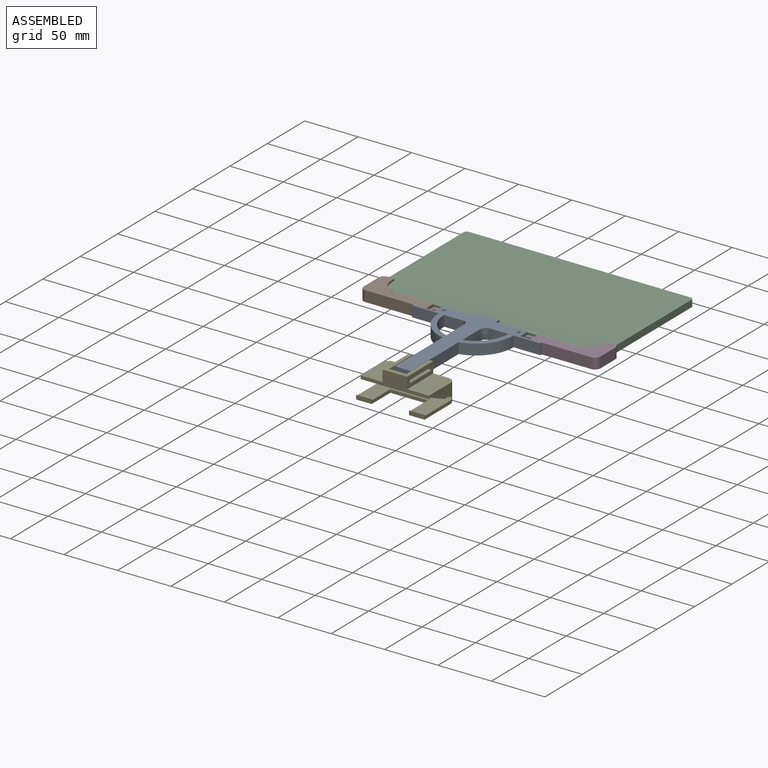
[diagram: assembled view]
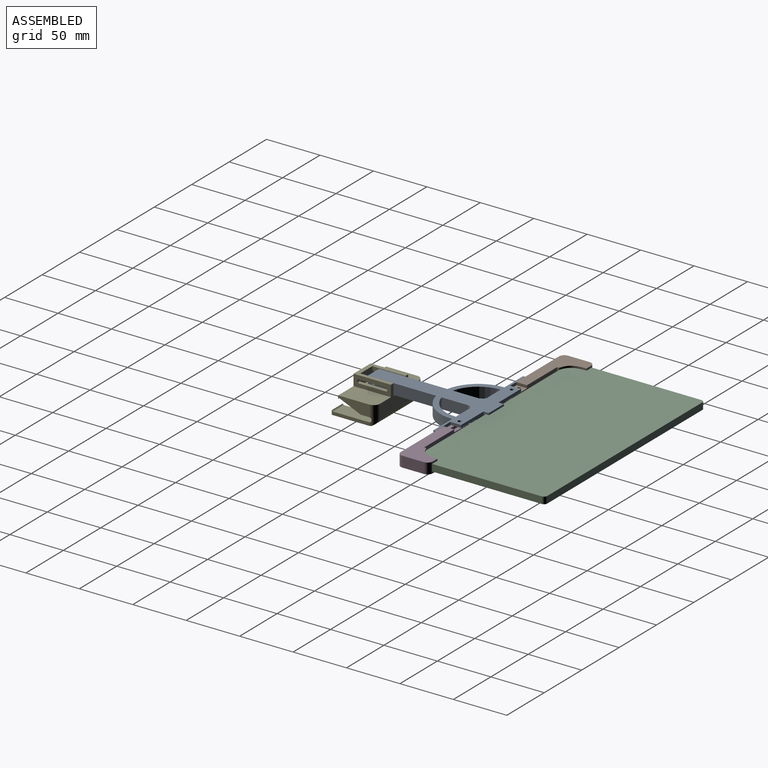
[diagram: assembled view, second angle]
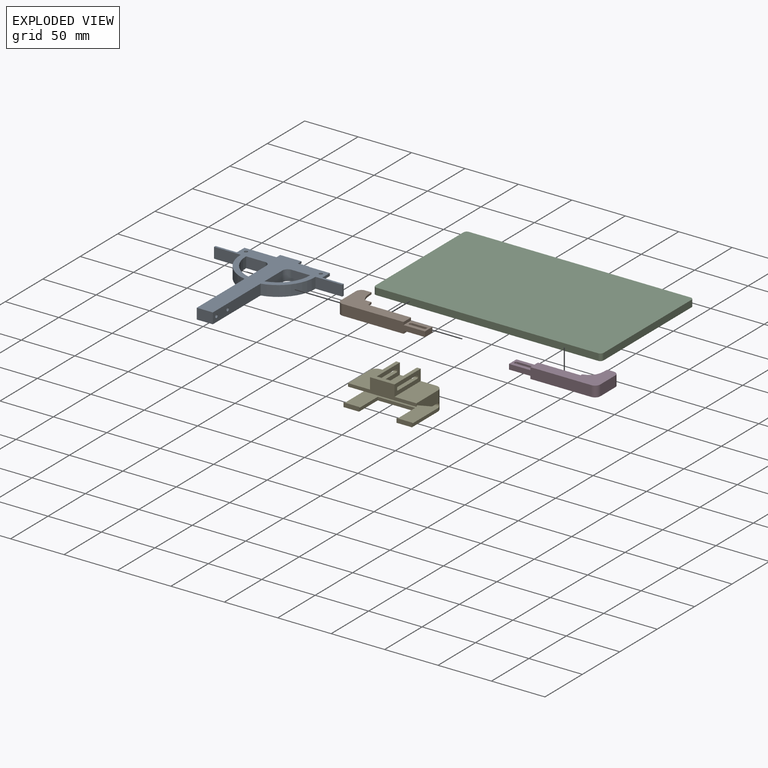
[diagram: exploded view]
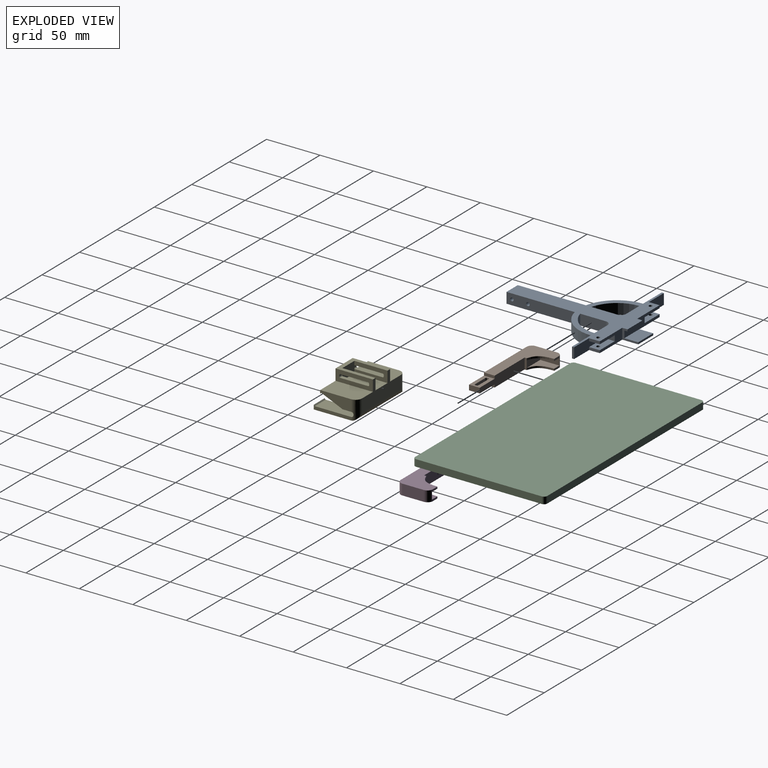
[diagram: exploded view, second angle]
ASSEMBLY  parts=5 mates=8
PART A: 46 faces, bbox 120x125x10 mm
  f0: plane 63.81x10mm, normal (-1,0,0), area 622mm2, adj f11,f13,f14,f35,f36,f44
  f1: plane 25x10mm, normal (0,-1,0), area 250mm2, adj f13,f14,f32,f44
  f2: plane 63.81x10mm, normal (1,0,0), area 622mm2, adj f11,f13,f14,f35,f36,f42
  f3: plane 17.5x10mm, normal (0,-1,0), area 175mm2, adj f13,f14,f34,f43
  f4: plane 20x1.75mm, normal (0,1,0), area 35mm2, adj f5,f13,f37,f39
  f5: plane 15x10mm, normal (-1,0,0), area 48mm2, adj f4,f6,f13,f14,f38,f39,f40,f41
  f6: plane 30x10mm, normal (0,1,0), area 200mm2, adj f5,f9,f13,f14,f16,f17,f18,f19
  f7: plane 10x2.5mm, normal (1,0,0), area 25mm2, adj f8,f14,f20,f29
  f8: plane 30x10mm, normal (0,1,0), area 200mm2, adj f7,f13,f14,f15,f20,f21,f22,f37
  f9: plane 10x2.5mm, normal (-1,0,0), area 25mm2, adj f6,f13,f17,f31
  f10: plane 24.05x10mm, normal (-1,0,0), area 240.5mm2, adj f13,f14,f33,f45
  f11: plane 15x10mm, normal (0,-1,0), area 150mm2, adj f0,f2,f13,f14
  f12: plane 24.05x10mm, normal (1,0,0), area 240.5mm2, adj f13,f14,f34,f43
  f13: plane 120x115mm, normal (0,0,1), area 3039.5mm2, adj f0,f1,f2,f3,f4,f5,f6,f8
  f14: plane 125x120mm, normal (0,0,-1), area 3239.5mm2, adj f0,f1,f2,f3,f5,f6,f7,f8
  f15: plane 10x2.5mm, normal (1,0,0), area 25mm2, adj f8,f13,f21,f29
  f16: plane 10x2.5mm, normal (-1,0,0), area 25mm2, adj f6,f14,f18,f31
  f17: plane 20x10mm, normal (0,0,-1), area 192mm2, adj f6,f9,f19,f26,f31
  f18: plane 20x10mm, normal (0,0,1), area 192mm2, adj f6,f16,f19,f25,f31
  f19: plane 10x5mm, normal (-1,0,0), area 50mm2, adj f6,f17,f18,f31
  f20: plane 20x10mm, normal (0,0,1), area 192mm2, adj f7,f8,f22,f24,f29
  f21: plane 20x10mm, normal (0,0,-1), area 192mm2, adj f8,f15,f22,f23,f29
  f22: plane 10x5mm, normal (1,0,0), area 50mm2, adj f8,f20,f21,f29
  f23: cylinder r=1.6mm len=3.2mm, axis (0,0,1), area 25.1mm2, adj f13,f21
  f24: cylinder r=1.6mm len=3.2mm, axis (0,0,1), area 25.1mm2, adj f14,f20
  f25: cylinder r=1.6mm len=3.2mm, axis (0,0,1), area 25.1mm2, adj f14,f18
  f26: cylinder r=1.6mm len=3.2mm, axis (0,0,1), area 25.1mm2, adj f13,f17
  f27: plane 10x2mm, normal (1,0,0), area 20mm2, adj f13,f14,f28,f29
  f28: plane 25x10mm, normal (0,-1,0), area 250mm2, adj f13,f14,f27,f42
  f29: plane 40x10mm, normal (0,1,0), area 300mm2, adj f7,f13,f14,f15,f20,f21,f22,f27
  f30: plane 17.5x10mm, normal (0,-1,0), area 175mm2, adj f13,f14,f33,f45
  f31: plane 40x10mm, normal (0,1,0), area 300mm2, adj f9,f13,f14,f16,f17,f18,f19,f32
  f32: plane 10x2mm, normal (-1,0,0), area 20mm2, adj f1,f13,f14,f31
  f33: cylinder r=5mm len=10mm, axis (0,0,-1), area 78.5mm2, adj f10,f13,f14,f30
  f34: cylinder r=5mm len=10mm, axis (0,0,1), area 78.5mm2, adj f3,f12,f13,f14
  f35: cylinder r=1.6mm len=15mm, axis (-1,0,0), area 150.8mm2, adj f0,f2
  f36: cylinder r=1.6mm len=15mm, axis (-1,0,0), area 150.8mm2, adj f0,f2
  f37: plane 15x10mm, normal (1,0,0), area 48mm2, adj f4,f8,f13,f14,f38,f39,f40,f41
  f38: plane 20x13mm, normal (0,0,1), area 260mm2, adj f5,f37,f40,f41
  f39: plane 20x3mm, normal (0,0,-1), area 60mm2, adj f4,f5,f37,f40
  f40: plane 20x6.5mm, normal (0,1,0), area 130mm2, adj f5,f37,f38,f39
  f41: plane 20x1.75mm, normal (0,1,0), area 35mm2, adj f5,f14,f37,f38
  f42: cylinder r=35mm len=34.19mm, axis (0,0,1), area 474.2mm2, adj f2,f13,f14,f28
  f43: cylinder r=30mm len=29.05mm, axis (0,0,1), area 395.4mm2, adj f3,f12,f13,f14
  f44: cylinder r=35mm len=34.19mm, axis (0,0,1), area 474.2mm2, adj f0,f1,f13,f14
  f45: cylinder r=30mm len=29.05mm, axis (0,0,1), area 395.4mm2, adj f10,f13,f14,f30
PART B: 29 faces, bbox 82x30x10 mm
  f0: plane 6x1.75mm, normal (0,1,0), area 10.5mm2, adj f1,f5,f25,f28
  f1: plane 62x30mm, normal (0,0,1), area 891.5mm2, adj f0,f2,f6,f7,f8,f12,f25,f27
  f2: plane 10x2mm, normal (1,0,0), area 20mm2, adj f1,f9,f11,f12,f25,f26
  f3: plane 6x1.75mm, normal (0,1,0), area 10.5mm2, adj f4,f9,f26,f28
  f4: plane 18x18mm, normal (0,0,1), area 166.2mm2, adj f3,f10,f11,f26,f28
  f5: plane 18x18mm, normal (0,0,-1), area 166.2mm2, adj f0,f10,f11,f25,f28
  f6: plane 10x2.6mm, normal (1,0,0), area 26mm2, adj f1,f7,f12,f15
  f7: plane 77x10mm, normal (0,-1,0), area 666mm2, adj f1,f6,f9,f13,f14,f15,f16,f27
  f8: plane 20x10mm, normal (-1,0,0), area 200mm2, adj f1,f9,f27,f28
  f9: plane 62x30mm, normal (0,0,-1), area 891.5mm2, adj f2,f3,f7,f8,f12,f13,f26,f27
  f10: plane 17.9x6.5mm, normal (1,0,0), area 116.3mm2, adj f4,f5,f11,f28
  f11: plane 18x6.5mm, normal (0,1,0), area 117mm2, adj f2,f4,f5,f10
  f12: plane 60x10mm, normal (0,1,0), area 496mm2, adj f1,f2,f6,f9,f13,f14,f15,f16
  f13: plane 10x2.6mm, normal (1,0,0), area 26mm2, adj f7,f9,f12,f14
  f14: plane 20x10mm, normal (0,0,-1), area 149.7mm2, adj f7,f12,f13,f16,f17,f18,f19,f20
  f15: plane 20x10mm, normal (0,0,1), area 149.7mm2, adj f6,f7,f12,f16,f17,f18,f19,f20
  f16: plane 10x4.8mm, normal (1,0,0), area 48mm2, adj f7,f12,f14,f15
  f17: cylinder r=1mm len=4.8mm, axis (0,0,1), area 7.5mm2, adj f14,f15,f18,f24
  f18: plane 14x4.8mm, normal (0,1,0), area 67.2mm2, adj f14,f15,f17,f19
  f19: cylinder r=1mm len=4.8mm, axis (0,0,1), area 7.5mm2, adj f14,f15,f18,f20
  f20: plane 4.8x1.2mm, normal (1,0,0), area 5.8mm2, adj f14,f15,f19,f21
  f21: cylinder r=1mm len=4.8mm, axis (0,0,1), area 7.5mm2, adj f14,f15,f20,f22
  f22: plane 14x4.8mm, normal (0,-1,0), area 67.2mm2, adj f14,f15,f21,f23
  f23: cylinder r=1mm len=4.8mm, axis (0,0,1), area 7.5mm2, adj f14,f15,f22,f24
  f24: plane 4.8x1.2mm, normal (-1,0,0), area 5.8mm2, adj f14,f15,f17,f23
  f25: extruded ~18x11mm, area 40.6mm2, adj f0,f1,f2,f5
  f26: extruded ~18x11mm, area 40.6mm2, adj f2,f3,f4,f9
  f27: cylinder r=5mm len=10mm, axis (0,0,1), area 78.5mm2, adj f1,f7,f8,f9
  f28: cylinder r=5mm len=10mm, axis (0,0,-1), area 72mm2, adj f0,f1,f3,f4,f5,f8,f9,f10
PART C: 10 faces, bbox 213.4x6.4x123.6 mm
  f0: plane 117.6x6.4mm, normal (-1,0,0), area 752.6mm2, adj f4,f5,f6,f9
  f1: plane 207.4x6.4mm, normal (0,0,-1), area 1327.4mm2, adj f4,f5,f6,f7
  f2: plane 117.6x6.4mm, normal (1,0,0), area 752.6mm2, adj f4,f5,f7,f8
  f3: plane 207.4x6.4mm, normal (0,0,1), area 1327.4mm2, adj f4,f5,f8,f9
  f4: plane 213.4x123.6mm, normal (0,-1,0), area 26368.5mm2, adj f0,f1,f2,f3,f6,f7,f8,f9
  f5: plane 213.4x123.6mm, normal (0,1,0), area 26368.5mm2, adj f0,f1,f2,f3,f6,f7,f8,f9
  f6: cylinder r=3mm len=6.4mm, axis (0,1,0), area 30.2mm2, adj f0,f1,f4,f5
  f7: cylinder r=3mm len=6.4mm, axis (0,-1,0), area 30.2mm2, adj f1,f2,f4,f5
  f8: cylinder r=3mm len=6.4mm, axis (0,1,0), area 30.2mm2, adj f2,f3,f4,f5
  f9: cylinder r=3mm len=6.4mm, axis (0,-1,0), area 30.2mm2, adj f0,f3,f4,f5
PART D: 29 faces, bbox 82x30x10 mm
  f0: plane 6x1.75mm, normal (0,1,0), area 10.5mm2, adj f1,f5,f25,f28
  f1: plane 62x30mm, normal (0,0,1), area 891.5mm2, adj f0,f2,f6,f7,f8,f12,f25,f27
  f2: plane 10x2mm, normal (-1,0,0), area 20mm2, adj f1,f9,f11,f12,f25,f26
  f3: plane 6x1.75mm, normal (0,1,0), area 10.5mm2, adj f4,f9,f26,f28
  f4: plane 18x18mm, normal (0,0,1), area 166.2mm2, adj f3,f10,f11,f26,f28
  f5: plane 18x18mm, normal (0,0,-1), area 166.2mm2, adj f0,f10,f11,f25,f28
  f6: plane 10x2.6mm, normal (-1,0,0), area 26mm2, adj f1,f7,f12,f15
  f7: plane 77x10mm, normal (0,-1,0), area 666mm2, adj f1,f6,f9,f13,f14,f15,f16,f27
  f8: plane 20x10mm, normal (1,0,0), area 200mm2, adj f1,f9,f27,f28
  f9: plane 62x30mm, normal (0,0,-1), area 891.5mm2, adj f2,f3,f7,f8,f12,f13,f26,f27
  f10: plane 17.9x6.5mm, normal (-1,0,0), area 116.3mm2, adj f4,f5,f11,f28
  f11: plane 18x6.5mm, normal (0,1,0), area 117mm2, adj f2,f4,f5,f10
  f12: plane 60x10mm, normal (0,1,0), area 496mm2, adj f1,f2,f6,f9,f13,f14,f15,f16
  f13: plane 10x2.6mm, normal (-1,0,0), area 26mm2, adj f7,f9,f12,f14
  f14: plane 20x10mm, normal (0,0,-1), area 149.7mm2, adj f7,f12,f13,f16,f17,f18,f19,f20
  f15: plane 20x10mm, normal (0,0,1), area 149.7mm2, adj f6,f7,f12,f16,f17,f18,f19,f20
  f16: plane 10x4.8mm, normal (-1,0,0), area 48mm2, adj f7,f12,f14,f15
  f17: cylinder r=1mm len=4.8mm, axis (0,0,1), area 7.5mm2, adj f14,f15,f18,f24
  f18: plane 14x4.8mm, normal (0,1,0), area 67.2mm2, adj f14,f15,f17,f19
  f19: cylinder r=1mm len=4.8mm, axis (0,0,1), area 7.5mm2, adj f14,f15,f18,f20
  f20: plane 4.8x1.2mm, normal (-1,0,0), area 5.8mm2, adj f14,f15,f19,f21
  f21: cylinder r=1mm len=4.8mm, axis (0,0,1), area 7.5mm2, adj f14,f15,f20,f22
  f22: plane 14x4.8mm, normal (0,-1,0), area 67.2mm2, adj f14,f15,f21,f23
  f23: cylinder r=1mm len=4.8mm, axis (0,0,1), area 7.5mm2, adj f14,f15,f22,f24
  f24: plane 4.8x1.2mm, normal (1,0,0), area 5.8mm2, adj f14,f15,f17,f23
  f25: extruded ~18x11mm, area 40.6mm2, adj f0,f1,f2,f5
  f26: extruded ~18x11mm, area 40.6mm2, adj f2,f3,f4,f9
  f27: cylinder r=5mm len=10mm, axis (0,0,1), area 78.5mm2, adj f1,f7,f8,f9
  f28: cylinder r=5mm len=10mm, axis (0,0,-1), area 72mm2, adj f0,f1,f3,f4,f5,f8,f9,f10
PART E: 51 faces, bbox 64x41x28.5 mm
  f0: plane 14.5x1mm, normal (0,0.71,0.71), area 20.5mm2, adj f11,f13,f18,f48
  f1: plane 14.5x4mm, normal (0,-1,0), area 58mm2, adj f2,f3,f12,f47
  f2: plane 64x35mm, normal (0,0,-1), area 1365mm2, adj f1,f3,f11,f13,f46,f47,f48,f49
  f3: plane 35x4mm, normal (1,0,0), area 105.5mm2, adj f1,f2,f12,f18,f44
  f4: plane 29x10.67mm, normal (-1,0,0), area 214.5mm2, adj f10,f15,f16,f17,f22,f45
  f5: plane 31x16mm, normal (0,0,1), area 496mm2, adj f6,f7,f14,f43
  f6: plane 31x10.5mm, normal (-1,0,0), area 238mm2, adj f5,f14,f24,f33,f34,f35,f36,f38
  f7: plane 31x10.5mm, normal (1,0,0), area 238mm2, adj f5,f14,f24,f25,f26,f28,f29,f30
  f8: plane 35x10.5mm, normal (1,0,0), area 278.8mm2, adj f9,f14,f16,f24,f33,f34,f35,f36
  f9: plane 35x20.5mm, normal (0,0,1), area 709.8mm2, adj f8,f14,f16,f19,f44
  f10: plane 64x20mm, normal (0,-0.4,-0.92), area 1395mm2, adj f4,f17,f19,f22
  f11: plane 35x4mm, normal (-1,0,0), area 105.5mm2, adj f0,f2,f13,f18,f45
  f12: plane 14.5x1mm, normal (0,0.71,0.71), area 20.5mm2, adj f1,f3,f18,f47
  f13: plane 14.5x4mm, normal (0,-1,0), area 58mm2, adj f0,f2,f11,f48
  f14: plane 52x22.5mm, normal (0,1,0), area 697.5mm2, adj f5,f6,f7,f8,f9,f15,f23,f24
  f15: plane 35x20.5mm, normal (0,0,1), area 709.8mm2, adj f4,f14,f16,f23,f45
  f16: plane 64x13.5mm, normal (0,-1,0), area 433.5mm2, adj f4,f8,f9,f15,f17,f19,f23,f24
  f17: plane 64x1mm, normal (0,0.71,-0.71), area 90.5mm2, adj f4,f10,f16,f19
  f18: plane 64x34mm, normal (0,0,1), area 1336mm2, adj f0,f3,f11,f12,f47,f48,f49,f50
  f19: plane 29x10.67mm, normal (1,0,0), area 214.5mm2, adj f9,f10,f16,f17,f22,f44
  f20: plane 63.31x0.33mm, normal (0,-1,0), area 21.1mm2, adj f21,f44,f45,f50
  f21: cylinder r=2mm len=64mm, axis (1,0,0), area 200mm2, adj f20,f22,f44,f45
  f22: plane 64x8mm, normal (0,0,-1), area 512mm2, adj f4,f10,f19,f21
  f23: plane 35x10.5mm, normal (-1,0,0), area 278.8mm2, adj f14,f15,f16,f24,f25,f26,f27,f28
  f24: plane 35x23mm, normal (0,0,1), area 309mm2, adj f6,f7,f8,f14,f16,f23,f43
  f25: plane 26x3.5mm, normal (0,0,1), area 91mm2, adj f7,f23,f26,f30
  f26: cylinder r=1mm len=3.5mm, axis (-1,0,0), area 5.5mm2, adj f7,f23,f25,f27,f41
  f27: plane 3.5x1.2mm, normal (0,1,0), area 4.2mm2, adj f23,f26,f28,f41
  f28: cylinder r=1mm len=3.5mm, axis (-1,0,0), area 5.5mm2, adj f7,f23,f27,f29,f41
  f29: plane 26x3.5mm, normal (0,0,-1), area 91mm2, adj f7,f23,f28,f31
  f30: cylinder r=1mm len=3.5mm, axis (-1,0,0), area 5.5mm2, adj f7,f23,f25,f32
  f31: cylinder r=1mm len=3.5mm, axis (-1,0,0), area 5.5mm2, adj f7,f23,f29,f32
  f32: plane 3.5x1.2mm, normal (0,-1,0), area 4.2mm2, adj f7,f23,f30,f31
  f33: plane 3.5x1.2mm, normal (0,-1,0), area 4.2mm2, adj f6,f8,f34,f38
  f34: cylinder r=1mm len=3.5mm, axis (1,0,0), area 5.5mm2, adj f6,f8,f33,f35
  f35: plane 26x3.5mm, normal (0,0,-1), area 91mm2, adj f6,f8,f34,f36
  f36: cylinder r=1mm len=3.5mm, axis (1,0,0), area 5.5mm2, adj f6,f8,f35,f37,f42
  f37: plane 3.5x1.2mm, normal (0,1,0), area 4.2mm2, adj f8,f36,f39,f42
  f38: cylinder r=1mm len=3.5mm, axis (1,0,0), area 5.5mm2, adj f6,f8,f33,f40
  f39: cylinder r=1mm len=3.5mm, axis (1,0,0), area 5.5mm2, adj f6,f8,f37,f40,f42
  f40: plane 26x3.5mm, normal (0,0,1), area 91mm2, adj f6,f8,f38,f39
  f41: plane 2.93x0.5mm, normal (-1,0,0), area 1.2mm2, adj f26,f27,f28,f43
  f42: plane 2.93x0.5mm, normal (1,0,0), area 1.2mm2, adj f36,f37,f39,f43
  f43: plane 16x10.5mm, normal (0,1,0), area 168mm2, adj f5,f6,f7,f24,f41,f42
  f44: cylinder r=6mm len=18mm, axis (0,0,-1), area 142mm2, adj f3,f9,f14,f19,f20,f21,f46,f50
  f45: cylinder r=6mm len=18mm, axis (0,0,1), area 142mm2, adj f4,f11,f14,f15,f20,f21,f46,f50
  f46: cylinder r=6mm len=64mm, axis (-1,0,0), area 562.1mm2, adj f2,f14,f44,f45
  f47: plane 25x4mm, normal (-1,0,0), area 75.5mm2, adj f1,f2,f12,f18,f49
  f48: plane 25x4mm, normal (1,0,0), area 75.5mm2, adj f0,f2,f13,f18,f49
  f49: plane 35x3mm, normal (0,-1,0), area 105mm2, adj f2,f18,f47,f48
  f50: cylinder r=2mm len=64mm, axis (-1,0,0), area 200mm2, adj f18,f20,f44,f45
PLACE A t=(-83.02,-92.9,-146.22)mm
PLACE B t=(-40.1,-27.9,-146.22)mm
PLACE C rot(axis=(-1,0,0),90deg) t=(-82.4,30.9,-146.27)mm
PLACE D t=(17.3,-27.9,-146.32)mm
PLACE E t=(-83.02,-136.05,-160.47)mm
MATE planar C.f4 <-> D.f5  axis (0,0,1) through (-82.4,30.9,-143.07)mm
MATE planar C.f2 <-> D.f10  axis (1,0,0) through (24.3,30.9,-146.27)mm
MATE planar D.f11 <-> C.f1  axis (0,1,0) through (15.3,-30.9,-146.32)mm
MATE planar B.f11 <-> C.f1  axis (0,1,0) through (-180.1,-30.9,-146.22)mm
MATE slider B.f16 <-> A.f22  axis (1,0,0) through (-111.1,-37.9,-146.22)mm
MATE planar B.f10 <-> C.f0  axis (1,0,0) through (-189.1,-21.95,-146.22)mm
MATE slider E.f43 <-> A.f11  axis (0,1,0) through (-83.02,-149.55,-146.22)mm
MATE planar B.f4 <-> C.f5  axis (0,0,1) through (-184.08,-23.24,-149.47)mm
